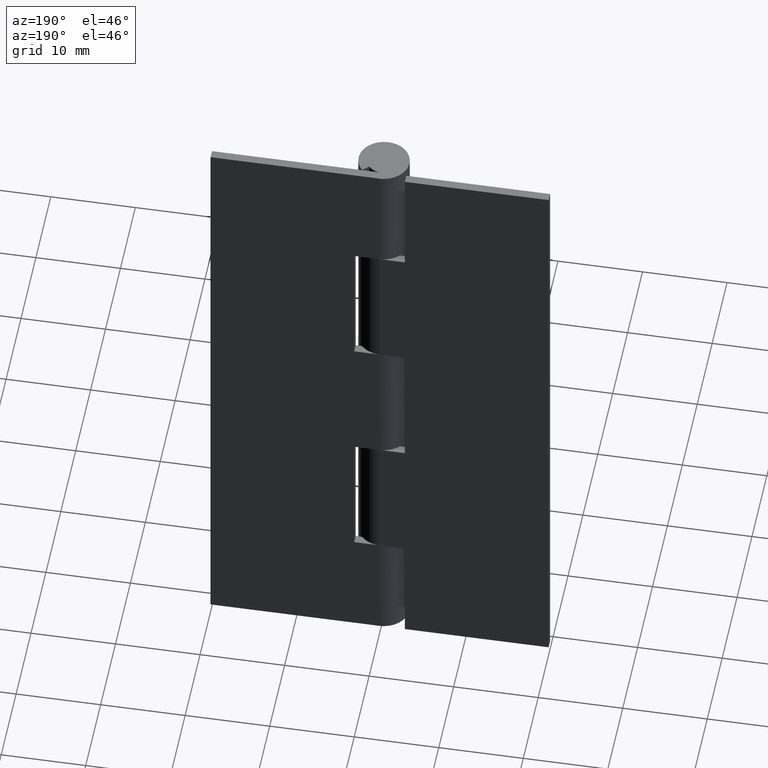
[diagram: clean part render]
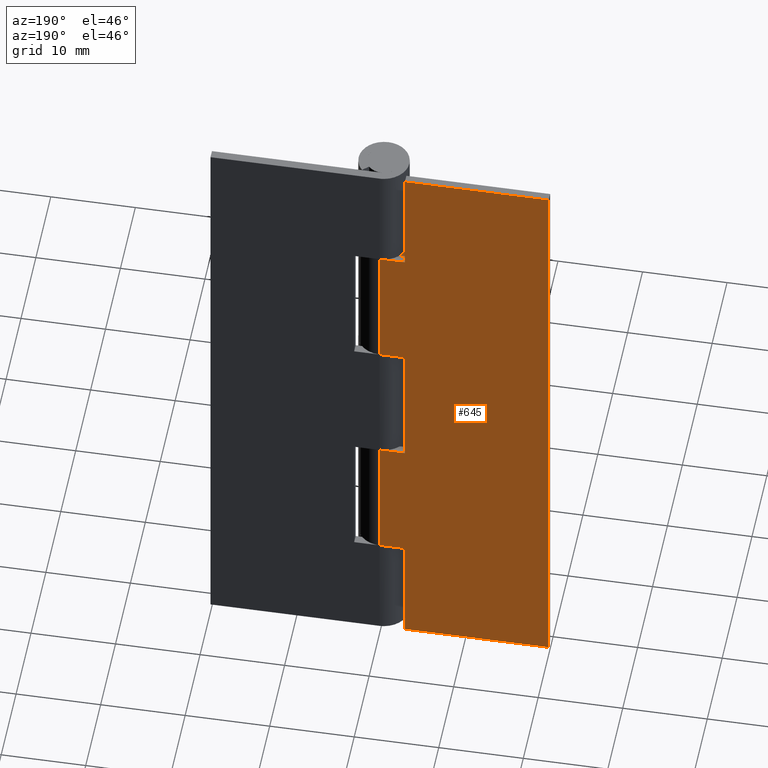
[diagram: same view with one face highlighted and labeled with its STEP entity id]
A machine part, auxiliary view. The second image highlights one B-rep face of the part: STEP entity #645.
In plain terms, the highlighted face is a freeform B-spline surface patch.
Its self-contained STEP definition (entity closure, byte-faithful):
#51=CARTESIAN_POINT('',(0.0,3.0,29.500000000000000));
#52=VERTEX_POINT('',#51);
#72=CARTESIAN_POINT('',(-3.0,3.0,29.500000000000000));
#73=VERTEX_POINT('',#72);
#74=CARTESIAN_POINT('',(0.0,3.0,29.500000000000000));
#75=CARTESIAN_POINT('',(-3.0,3.0,29.500000000000000));
#76=QUASI_UNIFORM_CURVE('',1,(#74,#75),.UNSPECIFIED.,.F.,.U.);
#77=EDGE_CURVE('',#52,#73,#76,.T.);
#127=CARTESIAN_POINT('',(0.0,3.0,45.500000000000000));
#128=VERTEX_POINT('',#127);
#185=CARTESIAN_POINT('',(-3.0,3.0,45.500000000000000));
#186=VERTEX_POINT('',#185);
#192=CARTESIAN_POINT('',(-3.0,3.0,45.500000000000000));
#193=CARTESIAN_POINT('',(0.0,3.0,45.500000000000000));
#194=QUASI_UNIFORM_CURVE('',1,(#192,#193),.UNSPECIFIED.,.F.,.U.);
#195=EDGE_CURVE('',#186,#128,#194,.T.);
#211=CARTESIAN_POINT('',(-3.0,3.0,29.500000000000000));
#212=CARTESIAN_POINT('',(-3.0,3.0,45.500000000000000));
#213=QUASI_UNIFORM_CURVE('',1,(#211,#212),.UNSPECIFIED.,.F.,.U.);
#214=EDGE_CURVE('',#73,#186,#213,.T.);
#227=CARTESIAN_POINT('',(0.0,3.0,13.500000000000201));
#228=VERTEX_POINT('',#227);
#283=CARTESIAN_POINT('',(-3.0,3.0,13.500000000000201));
#284=VERTEX_POINT('',#283);
#290=CARTESIAN_POINT('',(-3.0,3.0,13.500000000000201));
#291=CARTESIAN_POINT('',(0.0,3.0,13.500000000000201));
#292=QUASI_UNIFORM_CURVE('',1,(#290,#291),.UNSPECIFIED.,.F.,.U.);
#293=EDGE_CURVE('',#284,#228,#292,.T.);
#305=CARTESIAN_POINT('',(-3.0,3.0,0.0));
#306=VERTEX_POINT('',#305);
#312=CARTESIAN_POINT('',(-3.0,3.0,0.0));
#313=CARTESIAN_POINT('',(-3.0,3.0,13.500000000000201));
#314=QUASI_UNIFORM_CURVE('',1,(#312,#313),.UNSPECIFIED.,.F.,.U.);
#315=EDGE_CURVE('',#306,#284,#314,.T.);
#331=CARTESIAN_POINT('',(-3.0,3.0,61.500000000000000));
#332=VERTEX_POINT('',#331);
#333=CARTESIAN_POINT('',(0.0,3.0,61.500000000000000));
#334=VERTEX_POINT('',#333);
#335=CARTESIAN_POINT('',(-3.0,3.0,61.500000000000000));
#336=CARTESIAN_POINT('',(0.0,3.0,61.500000000000000));
#337=QUASI_UNIFORM_CURVE('',1,(#335,#336),.UNSPECIFIED.,.F.,.U.);
#338=EDGE_CURVE('',#332,#334,#337,.T.);
#410=CARTESIAN_POINT('',(-3.0,3.0,75.0));
#411=VERTEX_POINT('',#410);
#412=CARTESIAN_POINT('',(-3.0,3.0,75.0));
#413=CARTESIAN_POINT('',(-3.0,3.0,61.500000000000000));
#414=QUASI_UNIFORM_CURVE('',1,(#412,#413),.UNSPECIFIED.,.F.,.U.);
#415=EDGE_CURVE('',#411,#332,#414,.T.);
#439=CARTESIAN_POINT('',(-20.0,3.0,0.0));
#440=VERTEX_POINT('',#439);
#453=CARTESIAN_POINT('',(-20.0,3.0,75.0));
#454=VERTEX_POINT('',#453);
#460=CARTESIAN_POINT('',(-20.0,3.0,75.0));
#461=CARTESIAN_POINT('',(-20.0,3.0,0.0));
#462=QUASI_UNIFORM_CURVE('',1,(#460,#461),.UNSPECIFIED.,.F.,.U.);
#463=EDGE_CURVE('',#454,#440,#462,.T.);
#474=CARTESIAN_POINT('',(-20.0,3.0,75.0));
#475=CARTESIAN_POINT('',(-3.0,3.0,75.0));
#476=QUASI_UNIFORM_CURVE('',1,(#474,#475),.UNSPECIFIED.,.F.,.U.);
#477=EDGE_CURVE('',#454,#411,#476,.T.);
#493=CARTESIAN_POINT('',(-20.0,3.0,0.0));
#494=CARTESIAN_POINT('',(-3.0,3.0,0.0));
#495=QUASI_UNIFORM_CURVE('',1,(#493,#494),.UNSPECIFIED.,.F.,.U.);
#496=EDGE_CURVE('',#440,#306,#495,.T.);
#614=CARTESIAN_POINT('',(0.0,3.0,29.500000000000000));
#615=CARTESIAN_POINT('',(0.0,3.0,13.500000000000201));
#616=QUASI_UNIFORM_CURVE('',1,(#614,#615),.UNSPECIFIED.,.F.,.U.);
#617=EDGE_CURVE('',#52,#228,#616,.T.);
#622=CARTESIAN_POINT('',(-20.998999961236120,3.0,-3.746249854635448));
#623=CARTESIAN_POINT('',(-20.998999961236120,3.0,78.746251866292212));
#624=CARTESIAN_POINT('',(0.999000497677922,3.0,-3.746249854635448));
#625=CARTESIAN_POINT('',(0.999000497677922,3.0,78.746251866292212));
#626=B_SPLINE_SURFACE_WITH_KNOTS('',1,1,((#622,#624),(#623,#625)),.UNSPECIFIED.,.F.,.F.,.U.,(2,2),(2,2),(0.0,82.492501720927663),(0.0,21.998000458914039),.UNSPECIFIED.);
#627=ORIENTED_EDGE('',*,*,#195,.F.);
#628=ORIENTED_EDGE('',*,*,#214,.F.);
#629=ORIENTED_EDGE('',*,*,#77,.F.);
#630=ORIENTED_EDGE('',*,*,#617,.T.);
#631=ORIENTED_EDGE('',*,*,#293,.F.);
#632=ORIENTED_EDGE('',*,*,#315,.F.);
#633=ORIENTED_EDGE('',*,*,#496,.F.);
#634=ORIENTED_EDGE('',*,*,#463,.F.);
#635=ORIENTED_EDGE('',*,*,#477,.T.);
#636=ORIENTED_EDGE('',*,*,#415,.T.);
#637=ORIENTED_EDGE('',*,*,#338,.T.);
#638=CARTESIAN_POINT('',(0.0,3.0,61.500000000000000));
#639=CARTESIAN_POINT('',(0.0,3.0,45.500000000000000));
#640=QUASI_UNIFORM_CURVE('',1,(#638,#639),.UNSPECIFIED.,.F.,.U.);
#641=EDGE_CURVE('',#334,#128,#640,.T.);
#642=ORIENTED_EDGE('',*,*,#641,.T.);
#643=EDGE_LOOP('',(#627,#628,#629,#630,#631,#632,#633,#634,#635,#636,#637,#642));
#644=FACE_OUTER_BOUND('',#643,.T.);
#645=ADVANCED_FACE('',(#644),#626,.T.);